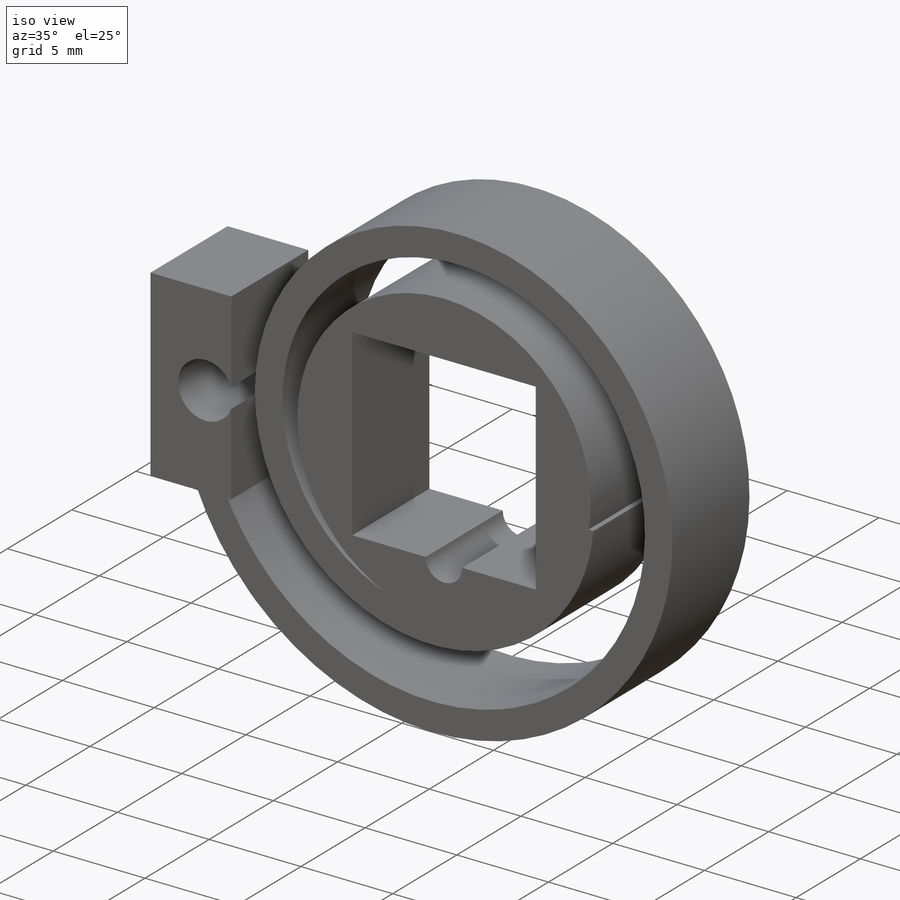
[diagram: iso view]
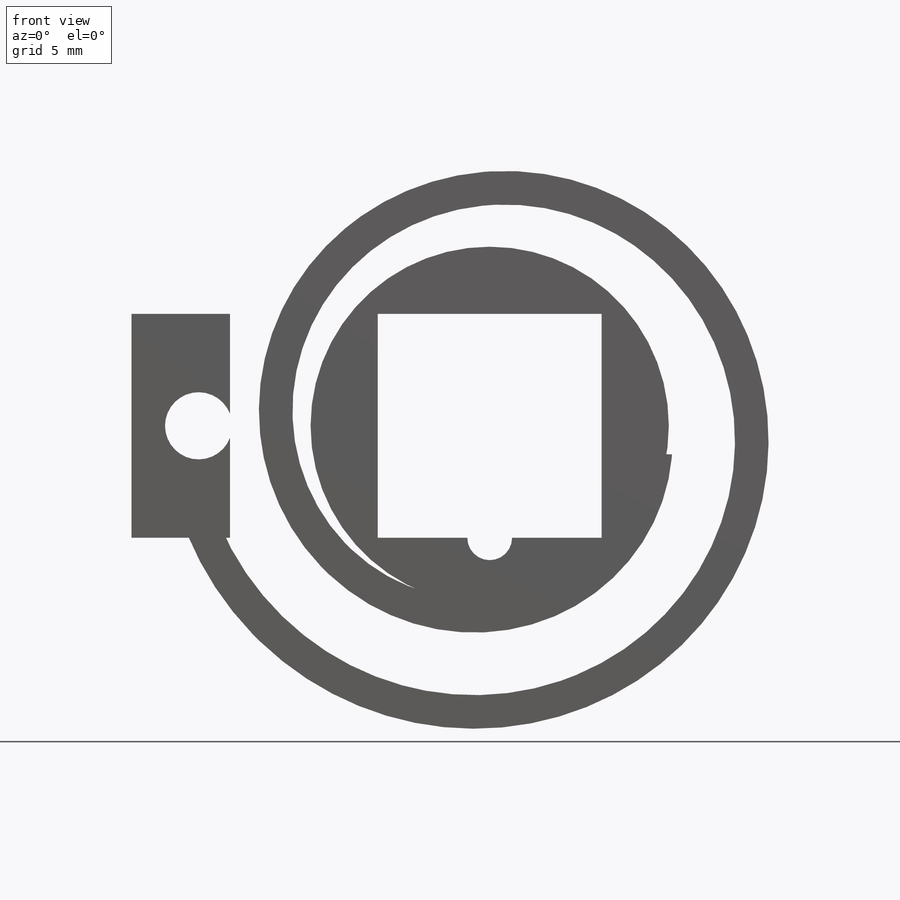
[diagram: front view]
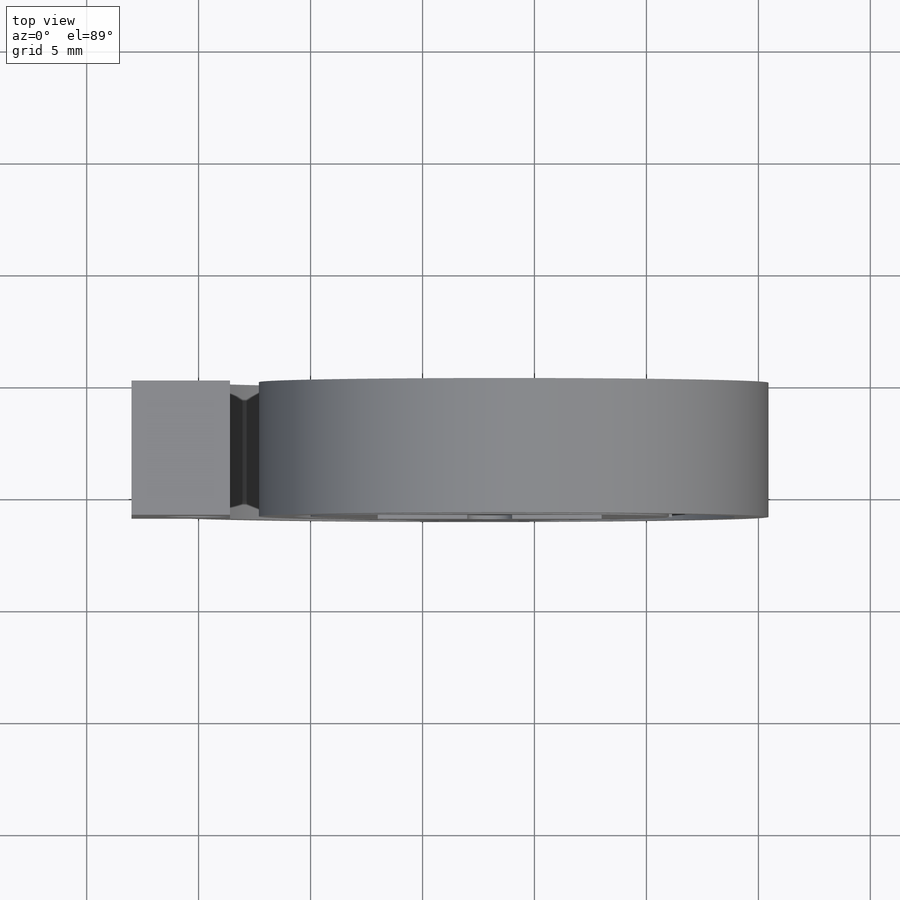
[diagram: top view]
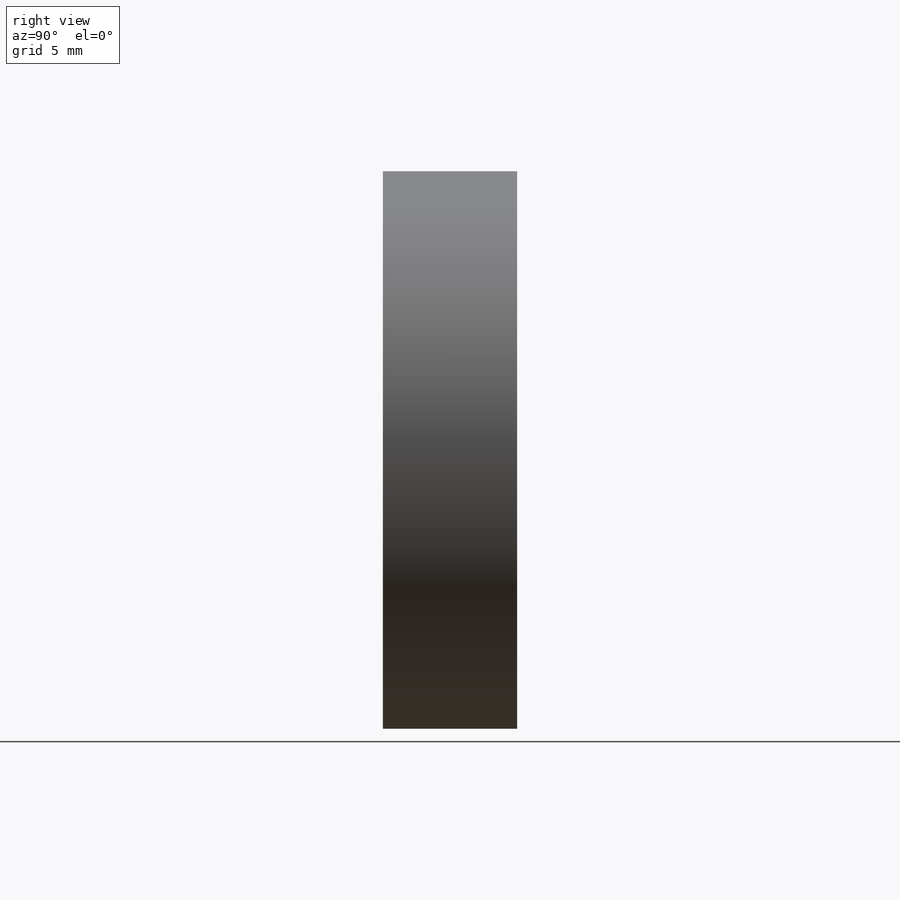
[diagram: right view]
SOLIDWORKS PART (.sldprt)
format: sldprt  version: not decoded by parser v0  size: 424,960 bytes
history: native  units: mm
features: sketch x4, plane x3, material x1, extrude x1, helix x1, sweep x1 (+8 scaffold rows collapsed)
feature tree (19):
  scaffold x8  (default folders/planes/origin — collapsed)
  material  "Matériau <non spécifié>"
  plane  "Plan de face"
  plane  "Plan de dessus"
  plane  "Plan de droite"
  sketch  "Esquisse1"  dims[D1=4.0mm]
  extrude  "Boss.-Extru.1"  Depth=6mm
  sketch  "Esquisse2"  dims[D1=13.0mm]
  helix  "Hélice/Spirale1"  Pitch=4.3mm
  sketch  "Esquisse3D3"  dims[D1=1.5mm]
  sweep  "Balayage2"
  sketch  "Esquisse3D5"
decode coverage: 5 of 7 modeling features carry decoded parameters
note: suppression state not decoded; provenance and decode notes live in map.json
